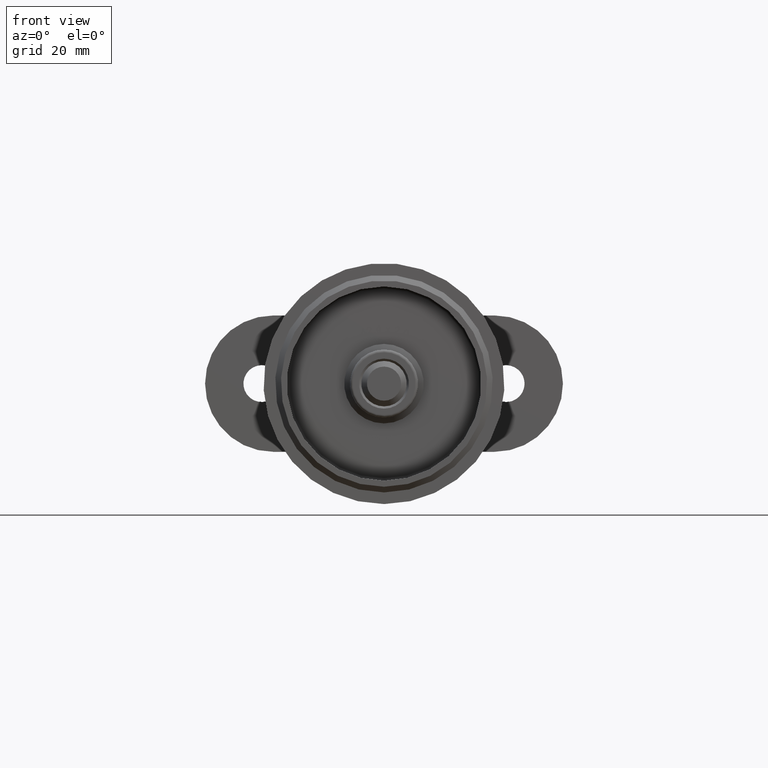
[diagram: clean part render]
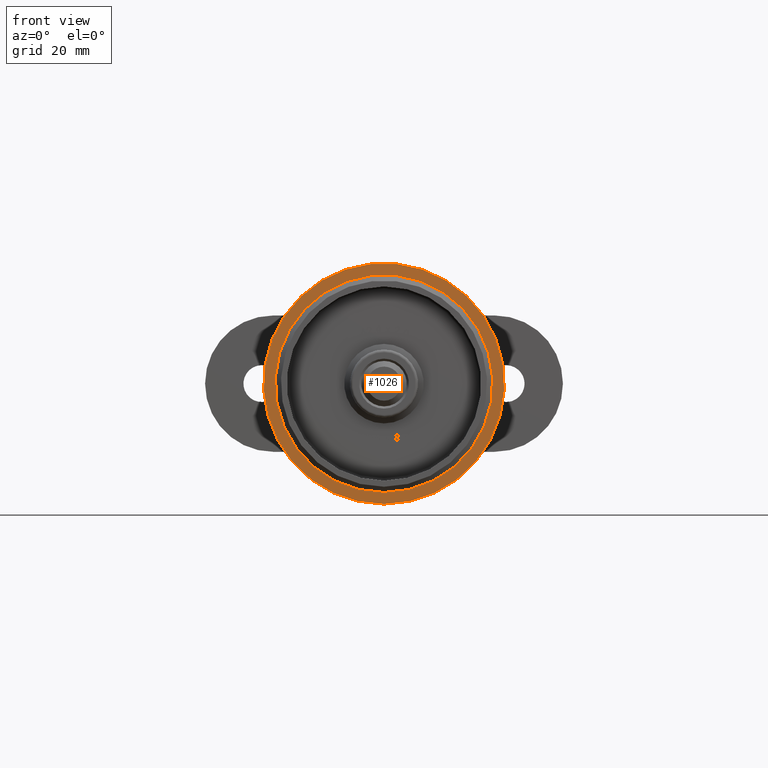
[diagram: same view with one face highlighted and labeled with its STEP entity id]
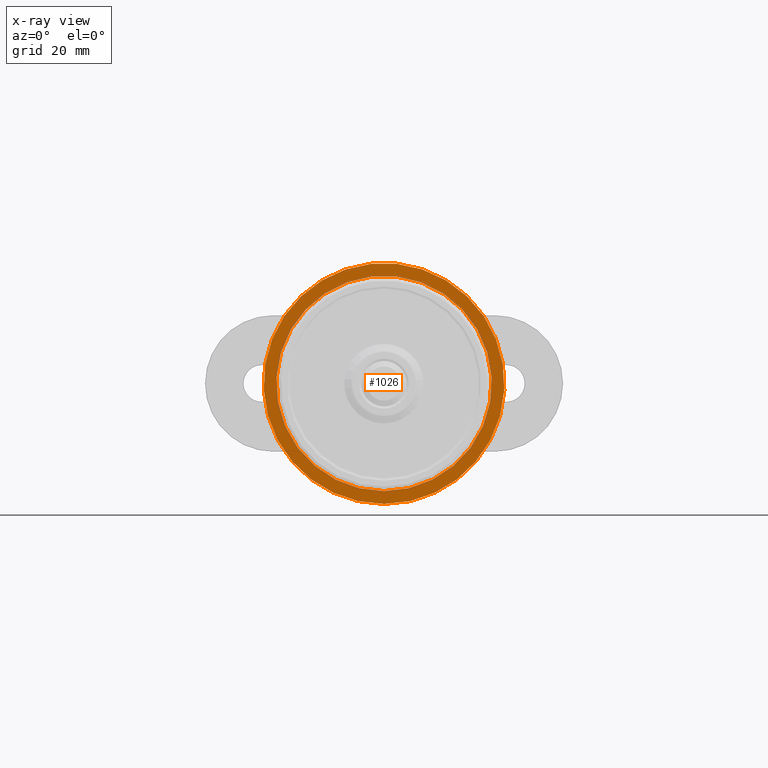
[diagram: x-ray of the same camera — body ghosted, the highlighted face saturated]
A machine part, front view. The second image highlights one B-rep face of the part: STEP entity #1026.
The next image is the same camera in x-ray: the body ghosted, the highlighted face saturated — about 8% of this face is hidden behind the body in this view.
In plain terms, the highlighted planar face has unit normal (0, -1, 0).
Its self-contained STEP definition (entity closure, byte-faithful):
#578 = CARTESIAN_POINT ( 'NONE',  ( 0.000000000000000000, 20.00000000000000355, -18.94999999999999574 ) ) ;
#1022 = FACE_OUTER_BOUND ( 'NONE', #15854, .T. ) ;
#1026 = ADVANCED_FACE ( 'NONE', ( #1022, #11248 ), #4747, .T. ) ;
#1407 = VERTEX_POINT ( 'NONE', #578 ) ;
#2020 = CARTESIAN_POINT ( 'NONE',  ( 21.19999999999999574, 20.00000000000000355, 0.000000000000000000 ) ) ;
#2172 = AXIS2_PLACEMENT_3D ( 'NONE', #2020, #14921, #4934 ) ;
#4736 = EDGE_LOOP ( 'NONE', ( #13885 ) ) ;
#4747 = PLANE ( 'NONE',  #2172 ) ;
#4757 = DIRECTION ( 'NONE',  ( 0.000000000000000000, 0.000000000000000000, -1.000000000000000000 ) ) ;
#4934 = DIRECTION ( 'NONE',  ( 0.000000000000000000, 0.000000000000000000, -1.000000000000000000 ) ) ;
#6042 = AXIS2_PLACEMENT_3D ( 'NONE', #18478, #14225, #14146 ) ;
#6109 = CARTESIAN_POINT ( 'NONE',  ( 0.000000000000000000, 20.00000000000000355, 0.000000000000000000 ) ) ;
#10957 = ORIENTED_EDGE ( 'NONE', *, *, #17852, .T. ) ;
#11248 = FACE_BOUND ( 'NONE', #4736, .T. ) ;
#11687 = AXIS2_PLACEMENT_3D ( 'NONE', #6109, #11926, #4757 ) ;
#11926 = DIRECTION ( 'NONE',  ( -0.000000000000000000, -1.000000000000000000, -0.000000000000000000 ) ) ;
#13413 = VERTEX_POINT ( 'NONE', #18040 ) ;
#13885 = ORIENTED_EDGE ( 'NONE', *, *, #14646, .F. ) ;
#14146 = DIRECTION ( 'NONE',  ( 0.000000000000000000, 0.000000000000000000, -1.000000000000000000 ) ) ;
#14225 = DIRECTION ( 'NONE',  ( -0.000000000000000000, -1.000000000000000000, -0.000000000000000000 ) ) ;
#14646 = EDGE_CURVE ( 'NONE', #1407, #1407, #15043, .T. ) ;
#14921 = DIRECTION ( 'NONE',  ( 0.000000000000000000, -1.000000000000000000, -0.000000000000000000 ) ) ;
#15043 = CIRCLE ( 'NONE', #11687, 18.94999999999999574 ) ;
#15479 = CIRCLE ( 'NONE', #6042, 21.19999999999999574 ) ;
#15854 = EDGE_LOOP ( 'NONE', ( #10957 ) ) ;
#17852 = EDGE_CURVE ( 'NONE', #13413, #13413, #15479, .T. ) ;
#18040 = CARTESIAN_POINT ( 'NONE',  ( 0.000000000000000000, 20.00000000000000355, -21.19999999999999574 ) ) ;
#18478 = CARTESIAN_POINT ( 'NONE',  ( 0.000000000000000000, 20.00000000000000355, 0.000000000000000000 ) ) ;